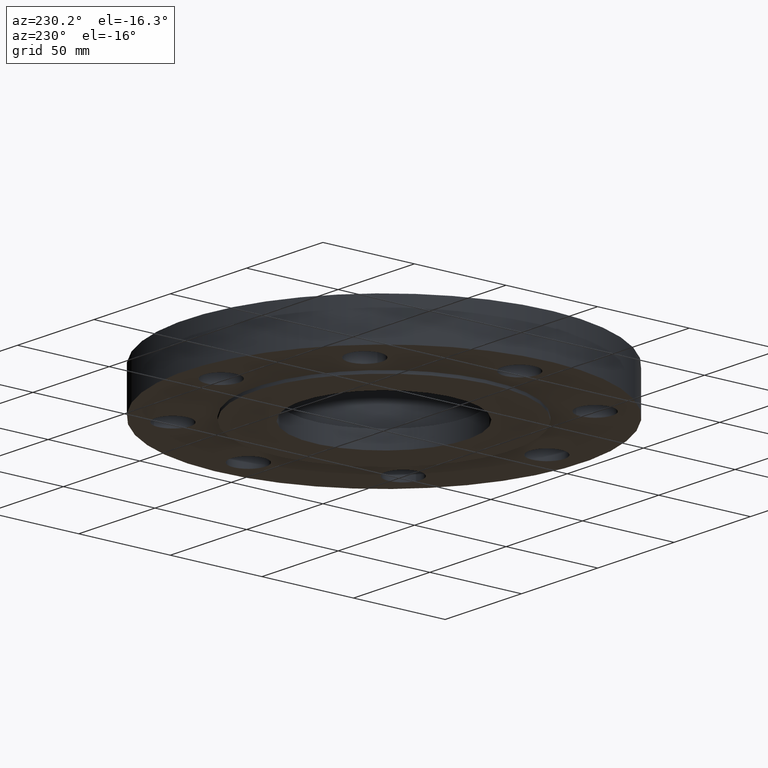
[diagram: clean part render]
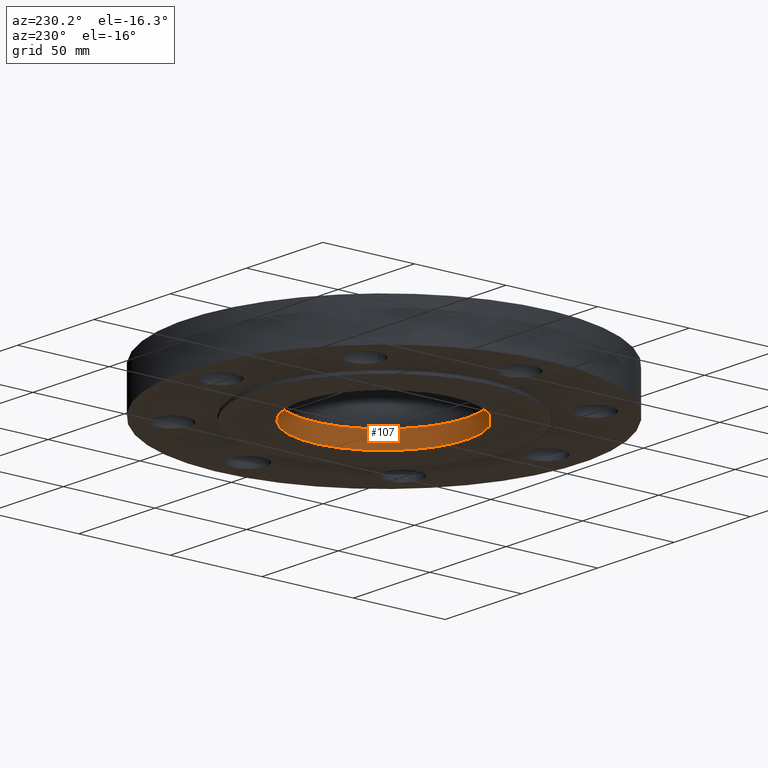
[diagram: same view with one face highlighted and labeled with its STEP entity id]
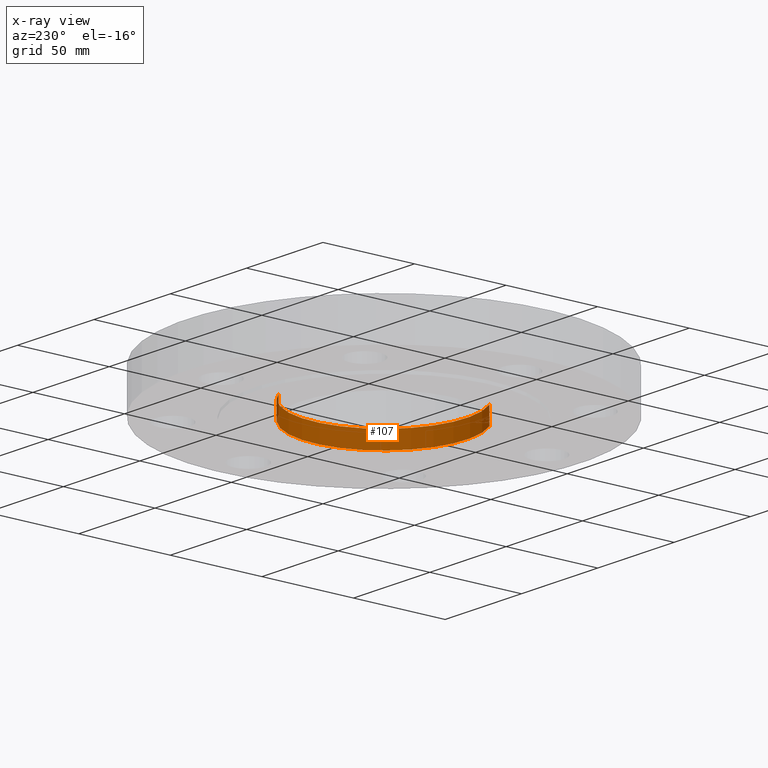
[diagram: x-ray of the same camera — body ghosted, the highlighted face saturated]
A machine part, auxiliary view. The second image highlights one B-rep face of the part: STEP entity #107.
The next image is the same camera in x-ray: the body ghosted, the highlighted face saturated — about 0% of this face is hidden behind the body in this view.
In plain terms, the highlighted cylindrical surface (partial cylindrical patch) has radius 45.0596 mm, axis along (0, 0, -1).
Its self-contained STEP definition (entity closure, byte-faithful):
#69=AXIS2_PLACEMENT_3D('Circle Axis2P3D',#67,#68,$) ;
#80=AXIS2_PLACEMENT_3D('Cylinder Axis2P3D',#77,#78,#79) ;
#91=AXIS2_PLACEMENT_3D('Circle Axis2P3D',#89,#90,$) ;
#62=CARTESIAN_POINT('Vertex',(-0.850500905487,-1.5568314648,0.310000000001)) ;
#64=CARTESIAN_POINT('Vertex',(0.850500905487,1.5568314648,0.310000000001)) ;
#67=CARTESIAN_POINT('Axis2P3D Location',(2.79741234551E-016,1.04902962957E-016,0.310000000001)) ;
#77=CARTESIAN_POINT('Axis2P3D Location',(0.,0.,0.563750000002)) ;
#82=CARTESIAN_POINT('Line Origine',(0.850500905487,1.5568314648,0.12375)) ;
#86=CARTESIAN_POINT('Vertex',(0.850500905487,1.5568314648,-0.0625000000003)) ;
#89=CARTESIAN_POINT('Axis2P3D Location',(0.,0.,-0.0625000000003)) ;
#93=CARTESIAN_POINT('Vertex',(-0.850500905487,-1.5568314648,-0.0625000000003)) ;
#96=CARTESIAN_POINT('Line Origine',(-0.850500905487,-1.5568314648,0.12375)) ;
#68=DIRECTION('Axis2P3D Direction',(0.,0.,-0.0393700787402)) ;
#78=DIRECTION('Axis2P3D Direction',(0.,0.,-0.0393700787402)) ;
#79=DIRECTION('Axis2P3D XDirection',(-0.0188750212049,-0.0345504945626,0.)) ;
#83=DIRECTION('Vector Direction',(0.,0.,-0.0393700787402)) ;
#90=DIRECTION('Axis2P3D Direction',(0.,0.,-0.0393700787402)) ;
#97=DIRECTION('Vector Direction',(0.,0.,-0.0393700787402)) ;
#84=VECTOR('Line Direction',#83,0.0393700787402) ;
#98=VECTOR('Line Direction',#97,0.0393700787402) ;
#102=ORIENTED_EDGE('',*,*,#88,.T.) ;
#103=ORIENTED_EDGE('',*,*,#95,.T.) ;
#104=ORIENTED_EDGE('',*,*,#100,.F.) ;
#105=ORIENTED_EDGE('',*,*,#71,.F.) ;
#107=ADVANCED_FACE('PartBody',(#106),#81,.F.) ;
#70=CIRCLE('generated circle',#69,1.77400000001) ;
#92=CIRCLE('generated circle',#91,1.77400000001) ;
#81=CYLINDRICAL_SURFACE('generated cylinder',#80,1.77400000001) ;
#71=EDGE_CURVE('',#65,#63,#70,.T.) ;
#88=EDGE_CURVE('',#65,#87,#85,.T.) ;
#95=EDGE_CURVE('',#87,#94,#92,.T.) ;
#100=EDGE_CURVE('',#63,#94,#99,.T.) ;
#101=EDGE_LOOP('',(#102,#103,#104,#105)) ;
#106=FACE_OUTER_BOUND('',#101,.T.) ;
#85=LINE('Line',#82,#84) ;
#99=LINE('Line',#96,#98) ;
#63=VERTEX_POINT('',#62) ;
#65=VERTEX_POINT('',#64) ;
#87=VERTEX_POINT('',#86) ;
#94=VERTEX_POINT('',#93) ;